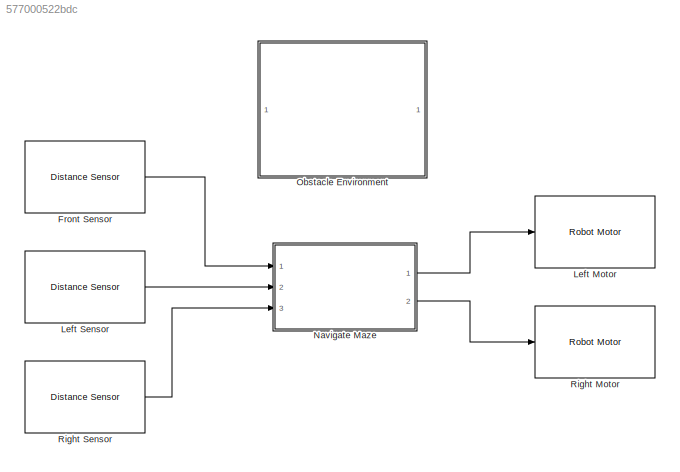
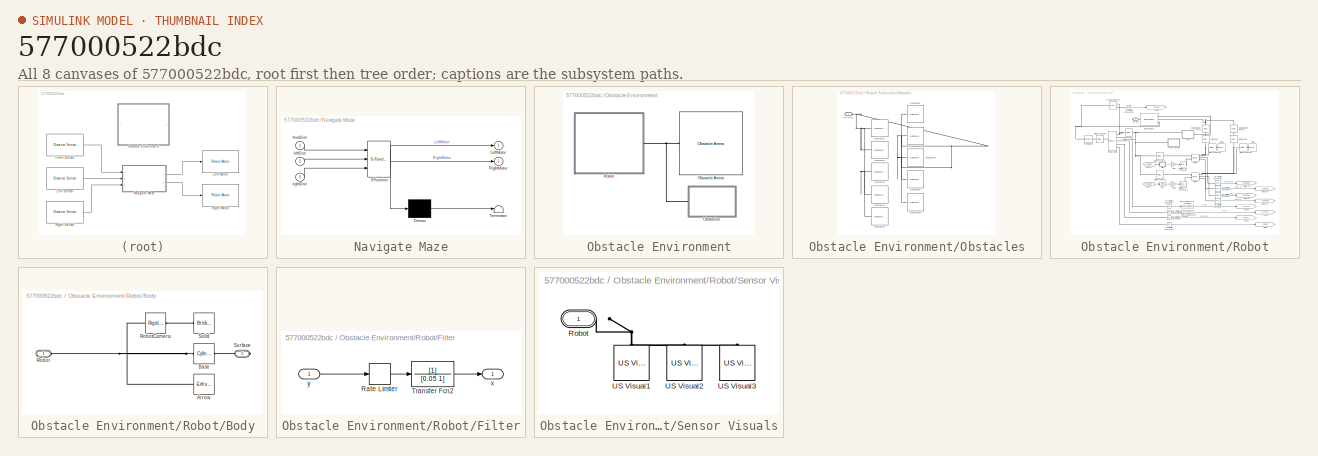
[diagram: thumbnail index - all 8 canvases of the model, root first then tree order]
MODEL slx_577000522bdc
KIND model
CONFIG AbsTol = auto
CONFIG EnableMultiTasking = off
CONFIG FixedStep = auto
CONFIG InitFcn = RPInit
CONFIG MaxStep = auto
CONFIG MinStep = auto
CONFIG RelTol = 1e-3
CONFIG SampleTimeConstraint = Unconstrained
CONFIG Solver = ode23t
CONFIG SolverName = ode23t
CONFIG StartTime = 0.0
CONFIG StopTime = inf
WORKSPACE source: mxarray member
WORKSPACE mapForSim: object (value not decoded)
WORKSPACE occGrid: robotics.BinaryOccupancyGrid (value not decoded)
BLOCK [Reference] Front Sensor  REF=RoboticsPlayground/Basic Sensors and Actuators/Distance Sensor
  Ports = [0, 1]
  SourceBlock = RoboticsPlayground/Basic Sensors and Actuators/Distance Sensor
  SourceProductName = Robotics Playground
  SourceType = RP Distance Sensor
BLOCK [Reference] Left Motor  REF=RoboticsPlayground/Basic Sensors and Actuators/Robot Motor
  Ports = [1]
  SourceBlock = RoboticsPlayground/Basic Sensors and Actuators/Robot Motor
  SourceProductName = Robotics Playground
  SourceType = RP Robot Motor
BLOCK [Reference] Left Sensor  REF=RoboticsPlayground/Basic Sensors and Actuators/Distance Sensor
  Ports = [0, 1]
  SourceBlock = RoboticsPlayground/Basic Sensors and Actuators/Distance Sensor
  SourceProductName = Robotics Playground
  SourceType = RP Distance Sensor
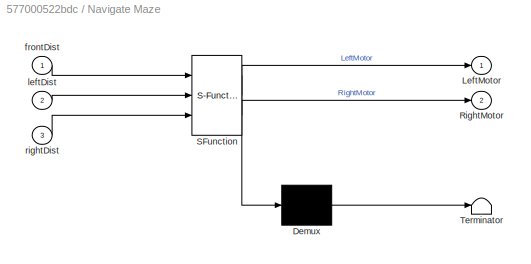
BLOCK [SubSystem] Navigate Maze
  ErrorFcn = Stateflow.Translate.translate
  PermitHierarchicalResolution = ExplicitOnly
  Ports = [3, 2]
  RequestExecContextInheritance = off
  SFBlockType = Chart
  TreatAsAtomicUnit = on
BLOCK [Demux] Navigate Maze/ Demux 
  Outputs = 1
  Ports = [1, 1]
BLOCK [S-Function] Navigate Maze/ SFunction 
  EnableBusSupport = on
  FunctionName = sf_sfun
  PortCounts = [3 3]
  Ports = [3, 3]
  SFcnIsStateOwnerBlock = off
  SFunctionDeploymentMode = off
  Tag = Stateflow S-Function 3
BLOCK [Terminator] Navigate Maze/ Terminator 
BLOCK [Outport] Navigate Maze/LeftMotor
  IconDisplay = Port number
  VectorParamsAs1DForOutWhenUnconnected = off
BLOCK [Outport] Navigate Maze/RightMotor
  IconDisplay = Port number
  Port = 2
  VectorParamsAs1DForOutWhenUnconnected = off
BLOCK [Inport] Navigate Maze/frontDist
  IconDisplay = Port number
BLOCK [Inport] Navigate Maze/leftDist
  IconDisplay = Port number
  Port = 2
BLOCK [Inport] Navigate Maze/rightDist
  IconDisplay = Port number
  Port = 3
BLOCK [SubSystem] Obstacle Environment
  CopyFcn = set_param(gcs,'InitFcn','RPInit');\nset_param(gcs,'Solver','ode23t');\nset_param(gcs, 'EnablePacing', 'on')\nset_param(gcs, 'PacingRate', 1)
  Ports = []
  RequestExecContextInheritance = off
BLOCK [Reference] Obstacle Environment/Obstacle Arena  REF=RP_Simulator_Components/Obstacle Arena
  Ports = [0, 0, 0, 0, 0, 1]
  SourceBlock = RP_Simulator_Components/Obstacle Arena
  SourceType = RP Grid Arena
BLOCK [SubSystem] Obstacle Environment/Obstacles
  Ports = [0, 0, 0, 0, 0, 1]
  RequestExecContextInheritance = off
BLOCK [Reference] Obstacle Environment/Obstacles/Obstacle1  REF=RP_Simulator_Components/Obstacle Contact-Disc Robot
  Ports = [0, 0, 0, 0, 0, 1]
  SourceBlock = RP_Simulator_Components/Obstacle Contact-Disc Robot
  SourceType = RP Rectangle-Disc obstacle
BLOCK [Reference] Obstacle Environment/Obstacles/Obstacle10  REF=RP_Simulator_Components/Obstacle Contact-Disc Robot
  Commented = on
  Ports = [0, 0, 0, 0, 0, 1]
  SourceBlock = RP_Simulator_Components/Obstacle Contact-Disc Robot
  SourceType = RP Rectangle-Disc obstacle
BLOCK [Reference] Obstacle Environment/Obstacles/Obstacle2  REF=RP_Simulator_Components/Obstacle Contact-Disc Robot
  Ports = [0, 0, 0, 0, 0, 1]
  SourceBlock = RP_Simulator_Components/Obstacle Contact-Disc Robot
  SourceType = RP Rectangle-Disc obstacle
BLOCK [Reference] Obstacle Environment/Obstacles/Obstacle3  REF=RP_Simulator_Components/Obstacle Contact-Disc Robot
  Ports = [0, 0, 0, 0, 0, 1]
  SourceBlock = RP_Simulator_Components/Obstacle Contact-Disc Robot
  SourceType = RP Rectangle-Disc obstacle
BLOCK [Reference] Obstacle Environment/Obstacles/Obstacle4  REF=RP_Simulator_Components/Obstacle Contact-Disc Robot
  Ports = [0, 0, 0, 0, 0, 1]
  SourceBlock = RP_Simulator_Components/Obstacle Contact-Disc Robot
  SourceType = RP Rectangle-Disc obstacle
BLOCK [Reference] Obstacle Environment/Obstacles/Obstacle5  REF=RP_Simulator_Components/Obstacle Contact-Disc Robot
  Ports = [0, 0, 0, 0, 0, 1]
  SourceBlock = RP_Simulator_Components/Obstacle Contact-Disc Robot
  SourceType = RP Rectangle-Disc obstacle
BLOCK [Reference] Obstacle Environment/Obstacles/Obstacle6  REF=RP_Simulator_Components/Obstacle Contact-Disc Robot
  Ports = [0, 0, 0, 0, 0, 1]
  SourceBlock = RP_Simulator_Components/Obstacle Contact-Disc Robot
  SourceType = RP Rectangle-Disc obstacle
BLOCK [Reference] Obstacle Environment/Obstacles/Obstacle7  REF=RP_Simulator_Components/Obstacle Contact-Disc Robot
  Ports = [0, 0, 0, 0, 0, 1]
  SourceBlock = RP_Simulator_Components/Obstacle Contact-Disc Robot
  SourceType = RP Rectangle-Disc obstacle
BLOCK [Reference] Obstacle Environment/Obstacles/Obstacle8  REF=RP_Simulator_Components/Obstacle Contact-Disc Robot
  Commented = on
  Ports = [0, 0, 0, 0, 0, 1]
  SourceBlock = RP_Simulator_Components/Obstacle Contact-Disc Robot
  SourceType = RP Rectangle-Disc obstacle
BLOCK [Reference] Obstacle Environment/Obstacles/Obstacle9  REF=RP_Simulator_Components/Obstacle Contact-Disc Robot
  Commented = on
  Ports = [0, 0, 0, 0, 0, 1]
  SourceBlock = RP_Simulator_Components/Obstacle Contact-Disc Robot
  SourceType = RP Rectangle-Disc obstacle
BLOCK [PMIOPort] Obstacle Environment/Obstacles/RP-Bus
  Side = Left
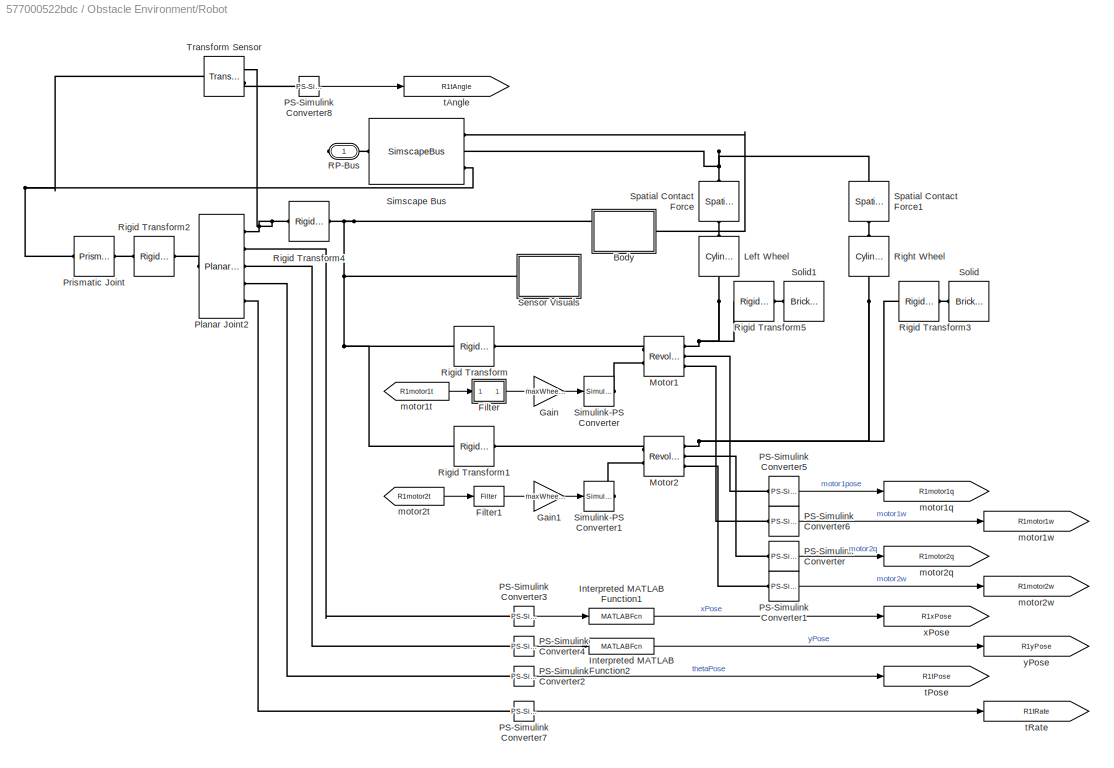
BLOCK [SubSystem] Obstacle Environment/Robot
  AncestorBlock = RP_Simulator_Components/Contact Tank Robot
  Ports = [0, 0, 0, 0, 0, 0, 1]
  RequestExecContextInheritance = off
BLOCK [SubSystem] Obstacle Environment/Robot/Body
  Ports = [0, 0, 0, 0, 0, 1, 1]
  RequestExecContextInheritance = off
BLOCK [Reference] Obstacle Environment/Robot/Body/Arrow  REF=sm_lib/Body Elements/Extruded Solid
  Ports = [0, 0, 0, 0, 0, 0, 1]
  SourceBlock = sm_lib/Body Elements/Extruded Solid
  SourceProductBaseCode = MS
  SourceProductName = Simscape Multibody
  SourceType = Extruded Solid
BLOCK [Reference] Obstacle Environment/Robot/Body/Base  REF=sm_lib/Body Elements/Cylindrical Solid
  Ports = [0, 0, 0, 0, 0, 1, 1]
  SourceBlock = sm_lib/Body Elements/Cylindrical Solid
  SourceProductBaseCode = MS
  SourceProductName = Simscape Multibody
  SourceType = Cylindrical Solid
BLOCK [PMIOPort] Obstacle Environment/Robot/Body/Robot
  Side = Left
BLOCK [Reference] Obstacle Environment/Robot/Body/RobotCamera  REF=sm_lib/Frames and
Transforms/Rigid
Transform
  Ports = [0, 0, 0, 0, 0, 1, 1]
  SourceBlock = sm_lib/Frames and\nTransforms/Rigid\nTransform
  SourceProductBaseCode = MS
  SourceProductName = Simscape Multibody
  SourceType = Rigid\nTransform
BLOCK [Reference] Obstacle Environment/Robot/Body/Solid  REF=sm_lib/Body Elements/Brick Solid
  Ports = [0, 0, 0, 0, 0, 0, 1]
  SourceBlock = sm_lib/Body Elements/Brick Solid
  SourceProductBaseCode = MS
  SourceProductName = Simscape Multibody
  SourceType = Brick Solid
BLOCK [PMIOPort] Obstacle Environment/Robot/Body/Surface
  Port = 2
  Side = Right
BLOCK [SubSystem] Obstacle Environment/Robot/Filter
  Ports = [1, 1]
  RequestExecContextInheritance = off
BLOCK [RateLimiter] Obstacle Environment/Robot/Filter/Rate Limiter
  FallingSlewLimit = -300
  RisingSlewLimit = 300
  SampleTimeMode = inherited
BLOCK [TransferFcn] Obstacle Environment/Robot/Filter/Transfer Fcn2
  Denominator = [0.05 1]
BLOCK [Outport] Obstacle Environment/Robot/Filter/x
  IconDisplay = Port number
  VectorParamsAs1DForOutWhenUnconnected = off
BLOCK [Inport] Obstacle Environment/Robot/Filter/y
  IconDisplay = Port number
BLOCK [Reference] Obstacle Environment/Robot/Filter1  REF=RP_Simulator_Components/Contact Tank Robot/Filter
  Ports = [1, 1]
  SourceBlock = RP_Simulator_Components/Contact Tank Robot/Filter
  SourceType = SubSystem
BLOCK [Gain] Obstacle Environment/Robot/Gain
  Gain = maxWheelTorque/127
  OutDataTypeStr = Inherit: Inherit via internal rule
  ParamDataTypeStr = Inherit: Inherit via internal rule
  SaturateOnIntegerOverflow = off
BLOCK [Gain] Obstacle Environment/Robot/Gain1
  Gain = maxWheelTorque/127
  OutDataTypeStr = Inherit: Inherit via internal rule
  ParamDataTypeStr = Inherit: Inherit via internal rule
  SaturateOnIntegerOverflow = off
BLOCK [MATLABFcn] Obstacle Environment/Robot/Interpreted MATLAB Function1
  MATLABFcn = u+floorSize(1)/2
  Ports = [1, 1]
BLOCK [MATLABFcn] Obstacle Environment/Robot/Interpreted MATLAB Function2
  MATLABFcn = u+floorSize(2)/2
  Ports = [1, 1]
BLOCK [Reference] Obstacle Environment/Robot/Left Wheel  REF=sm_lib/Body Elements/Cylindrical Solid
  Ports = [0, 0, 0, 0, 0, 1, 1]
  SourceBlock = sm_lib/Body Elements/Cylindrical Solid
  SourceProductBaseCode = MS
  SourceProductName = Simscape Multibody
  SourceType = Cylindrical Solid
BLOCK [Reference] Obstacle Environment/Robot/Motor1  REF=sm_lib/Joints/Revolute Joint
  Ports = [0, 0, 0, 0, 0, 2, 3]
  SourceBlock = sm_lib/Joints/Revolute Joint
  SourceProductBaseCode = MS
  SourceProductName = Simscape Multibody
  SourceType = Revolute Joint
BLOCK [Reference] Obstacle Environment/Robot/Motor2  REF=sm_lib/Joints/Revolute Joint
  Ports = [0, 0, 0, 0, 0, 2, 3]
  SourceBlock = sm_lib/Joints/Revolute Joint
  SourceProductBaseCode = MS
  SourceProductName = Simscape Multibody
  SourceType = Revolute Joint
BLOCK [Reference] Obstacle Environment/Robot/PS-Simulink Converter  REF=nesl_utility/PS-Simulink
Converter
  Ports = [0, 1, 0, 0, 0, 1]
  SourceBlock = nesl_utility/PS-Simulink\nConverter
  SourceProductBaseCode = SS
  SourceProductName = Simscape
  SourceType = PS-Simulink\nConverter
BLOCK [Reference] Obstacle Environment/Robot/PS-Simulink Converter1  REF=nesl_utility/PS-Simulink
Converter
  Ports = [0, 1, 0, 0, 0, 1]
  SourceBlock = nesl_utility/PS-Simulink\nConverter
  SourceProductBaseCode = SS
  SourceProductName = Simscape
  SourceType = PS-Simulink\nConverter
BLOCK [Reference] Obstacle Environment/Robot/PS-Simulink Converter2  REF=nesl_utility/PS-Simulink
Converter
  Ports = [0, 1, 0, 0, 0, 1]
  SourceBlock = nesl_utility/PS-Simulink\nConverter
  SourceProductBaseCode = SS
  SourceProductName = Simscape
  SourceType = PS-Simulink\nConverter
BLOCK [Reference] Obstacle Environment/Robot/PS-Simulink Converter3  REF=nesl_utility/PS-Simulink
Converter
  Ports = [0, 1, 0, 0, 0, 1]
  SourceBlock = nesl_utility/PS-Simulink\nConverter
  SourceProductBaseCode = SS
  SourceProductName = Simscape
  SourceType = PS-Simulink\nConverter
BLOCK [Reference] Obstacle Environment/Robot/PS-Simulink Converter4  REF=nesl_utility/PS-Simulink
Converter
  Ports = [0, 1, 0, 0, 0, 1]
  SourceBlock = nesl_utility/PS-Simulink\nConverter
  SourceProductBaseCode = SS
  SourceProductName = Simscape
  SourceType = PS-Simulink\nConverter
BLOCK [Reference] Obstacle Environment/Robot/PS-Simulink Converter5  REF=nesl_utility/PS-Simulink
Converter
  Ports = [0, 1, 0, 0, 0, 1]
  SourceBlock = nesl_utility/PS-Simulink\nConverter
  SourceProductBaseCode = SS
  SourceProductName = Simscape
  SourceType = PS-Simulink\nConverter
BLOCK [Reference] Obstacle Environment/Robot/PS-Simulink Converter6  REF=nesl_utility/PS-Simulink
Converter
  Ports = [0, 1, 0, 0, 0, 1]
  SourceBlock = nesl_utility/PS-Simulink\nConverter
  SourceProductBaseCode = SS
  SourceProductName = Simscape
  SourceType = PS-Simulink\nConverter
BLOCK [Reference] Obstacle Environment/Robot/PS-Simulink Converter7  REF=nesl_utility/PS-Simulink
Converter
  Ports = [0, 1, 0, 0, 0, 1]
  SourceBlock = nesl_utility/PS-Simulink\nConverter
  SourceProductBaseCode = SS
  SourceProductName = Simscape
  SourceType = PS-Simulink\nConverter
BLOCK [Reference] Obstacle Environment/Robot/PS-Simulink Converter8  REF=nesl_utility/PS-Simulink
Converter
  Ports = [0, 1, 0, 0, 0, 1]
  SourceBlock = nesl_utility/PS-Simulink\nConverter
  SourceProductBaseCode = SS
  SourceProductName = Simscape
  SourceType = PS-Simulink\nConverter
BLOCK [Reference] Obstacle Environment/Robot/Planar Joint2  REF=sm_lib/Joints/Planar Joint
  Ports = [0, 0, 0, 0, 0, 1, 5]
  SourceBlock = sm_lib/Joints/Planar Joint
  SourceProductBaseCode = MS
  SourceProductName = Simscape Multibody
  SourceType = Planar Joint
BLOCK [Reference] Obstacle Environment/Robot/Prismatic Joint  REF=sm_lib/Joints/Prismatic
Joint
  Ports = [0, 0, 0, 0, 0, 1, 1]
  SourceBlock = sm_lib/Joints/Prismatic\nJoint
  SourceProductBaseCode = MS
  SourceProductName = Simscape Multibody
  SourceType = Prismatic\nJoint
BLOCK [PMIOPort] Obstacle Environment/Robot/RP-Bus
  Side = Right
BLOCK [Reference] Obstacle Environment/Robot/Right Wheel  REF=sm_lib/Body Elements/Cylindrical Solid
  Ports = [0, 0, 0, 0, 0, 1, 1]
  SourceBlock = sm_lib/Body Elements/Cylindrical Solid
  SourceProductBaseCode = MS
  SourceProductName = Simscape Multibody
  SourceType = Cylindrical Solid
BLOCK [Reference] Obstacle Environment/Robot/Rigid Transform  REF=sm_lib/Frames and
Transforms/Rigid
Transform
  Ports = [0, 0, 0, 0, 0, 1, 1]
  SourceBlock = sm_lib/Frames and\nTransforms/Rigid\nTransform
  SourceProductBaseCode = MS
  SourceProductName = Simscape Multibody
  SourceType = Rigid\nTransform
BLOCK [Reference] Obstacle Environment/Robot/Rigid Transform1  REF=sm_lib/Frames and
Transforms/Rigid
Transform
  Ports = [0, 0, 0, 0, 0, 1, 1]
  SourceBlock = sm_lib/Frames and\nTransforms/Rigid\nTransform
  SourceProductBaseCode = MS
  SourceProductName = Simscape Multibody
  SourceType = Rigid\nTransform
BLOCK [Reference] Obstacle Environment/Robot/Rigid Transform2  REF=sm_lib/Frames and
Transforms/Rigid
Transform
  Ports = [0, 0, 0, 0, 0, 1, 1]
  SourceBlock = sm_lib/Frames and\nTransforms/Rigid\nTransform
  SourceProductBaseCode = MS
  SourceProductName = Simscape Multibody
  SourceType = Rigid\nTransform
BLOCK [Reference] Obstacle Environment/Robot/Rigid Transform3  REF=sm_lib/Frames and
Transforms/Rigid
Transform
  Ports = [0, 0, 0, 0, 0, 1, 1]
  SourceBlock = sm_lib/Frames and\nTransforms/Rigid\nTransform
  SourceProductBaseCode = MS
  SourceProductName = Simscape Multibody
  SourceType = Rigid\nTransform
BLOCK [Reference] Obstacle Environment/Robot/Rigid Transform4  REF=sm_lib/Frames and
Transforms/Rigid
Transform
  Ports = [0, 0, 0, 0, 0, 1, 1]
  SourceBlock = sm_lib/Frames and\nTransforms/Rigid\nTransform
  SourceProductBaseCode = MS
  SourceProductName = Simscape Multibody
  SourceType = Rigid\nTransform
BLOCK [Reference] Obstacle Environment/Robot/Rigid Transform5  REF=sm_lib/Frames and
Transforms/Rigid
Transform
  Ports = [0, 0, 0, 0, 0, 1, 1]
  SourceBlock = sm_lib/Frames and\nTransforms/Rigid\nTransform
  SourceProductBaseCode = MS
  SourceProductName = Simscape Multibody
  SourceType = Rigid\nTransform
BLOCK [SubSystem] Obstacle Environment/Robot/Sensor Visuals
  Ports = [0, 0, 0, 0, 0, 1]
  RequestExecContextInheritance = off
BLOCK [PMIOPort] Obstacle Environment/Robot/Sensor Visuals/Robot
  Side = Left
BLOCK [Reference] Obstacle Environment/Robot/Sensor Visuals/US Visual1  REF=RP_Simulator_Components/US Visual
  Ports = [0, 0, 0, 0, 0, 1]
  SourceBlock = RP_Simulator_Components/US Visual
  SourceType = RP US Visual
BLOCK [Reference] Obstacle Environment/Robot/Sensor Visuals/US Visual2  REF=RP_Simulator_Components/US Visual
  Ports = [0, 0, 0, 0, 0, 1]
  SourceBlock = RP_Simulator_Components/US Visual
  SourceType = RP US Visual
BLOCK [Reference] Obstacle Environment/Robot/Sensor Visuals/US Visual3  REF=RP_Simulator_Components/US Visual
  Ports = [0, 0, 0, 0, 0, 1]
  SourceBlock = RP_Simulator_Components/US Visual
  SourceType = RP US Visual
BLOCK [SimscapeBus] Obstacle Environment/Robot/Simscape Bus
  HierarchyStrings = RobotSurface;FloorSurface;Ref
  Ports = [0, 0, 0, 0, 0, 3, 1]
BLOCK [Reference] Obstacle Environment/Robot/Simulink-PS Converter  REF=nesl_utility/Simulink-PS
Converter
  Ports = [1, 0, 0, 0, 0, 0, 1]
  SourceBlock = nesl_utility/Simulink-PS\nConverter
  SourceProductBaseCode = SS
  SourceProductName = Simscape
  SourceType = Simulink-PS\nConverter
BLOCK [Reference] Obstacle Environment/Robot/Simulink-PS Converter1  REF=nesl_utility/Simulink-PS
Converter
  Ports = [1, 0, 0, 0, 0, 0, 1]
  SourceBlock = nesl_utility/Simulink-PS\nConverter
  SourceProductBaseCode = SS
  SourceProductName = Simscape
  SourceType = Simulink-PS\nConverter
BLOCK [Reference] Obstacle Environment/Robot/Solid  REF=sm_lib/Body Elements/Brick Solid
  Ports = [0, 0, 0, 0, 0, 0, 1]
  SourceBlock = sm_lib/Body Elements/Brick Solid
  SourceProductBaseCode = MS
  SourceProductName = Simscape Multibody
  SourceType = Brick Solid
BLOCK [Reference] Obstacle Environment/Robot/Solid1  REF=sm_lib/Body Elements/Brick Solid
  Ports = [0, 0, 0, 0, 0, 0, 1]
  SourceBlock = sm_lib/Body Elements/Brick Solid
  SourceProductBaseCode = MS
  SourceProductName = Simscape Multibody
  SourceType = Brick Solid
BLOCK [Reference] Obstacle Environment/Robot/Spatial Contact Force  REF=sm_lib/Forces and
Torques/Spatial
Contact Force
  Ports = [0, 0, 0, 0, 0, 1, 1]
  SourceBlock = sm_lib/Forces and\nTorques/Spatial\nContact Force
  SourceProductBaseCode = MS
  SourceProductName = Simscape Multibody
  SourceType = Spatial\nContact Force
BLOCK [Reference] Obstacle Environment/Robot/Spatial Contact Force1  REF=sm_lib/Forces and
Torques/Spatial
Contact Force
  Ports = [0, 0, 0, 0, 0, 1, 1]
  SourceBlock = sm_lib/Forces and\nTorques/Spatial\nContact Force
  SourceProductBaseCode = MS
  SourceProductName = Simscape Multibody
  SourceType = Spatial\nContact Force
BLOCK [Reference] Obstacle Environment/Robot/Transform Sensor  REF=sm_lib/Frames and
Transforms/Transform
Sensor
  Ports = [0, 0, 0, 0, 0, 1, 2]
  SourceBlock = sm_lib/Frames and\nTransforms/Transform\nSensor
  SourceProductBaseCode = MS
  SourceProductName = Simscape Multibody
  SourceType = Transform\nSensor
BLOCK [Goto] Obstacle Environment/Robot/motor1q
  GotoTag = R1motor1q
  TagVisibility = global
BLOCK [From] Obstacle Environment/Robot/motor1t
  GotoTag = R1motor1t
  TagVisibility = global
BLOCK [Goto] Obstacle Environment/Robot/motor1w
  GotoTag = R1motor1w
  TagVisibility = global
BLOCK [Goto] Obstacle Environment/Robot/motor2q
  GotoTag = R1motor2q
  TagVisibility = global
BLOCK [From] Obstacle Environment/Robot/motor2t
  GotoTag = R1motor2t
  TagVisibility = global
BLOCK [Goto] Obstacle Environment/Robot/motor2w
  GotoTag = R1motor2w
  TagVisibility = global
BLOCK [Goto] Obstacle Environment/Robot/tAngle
  GotoTag = R1tAngle
  TagVisibility = global
BLOCK [Goto] Obstacle Environment/Robot/tPose
  GotoTag = R1tPose
  TagVisibility = global
BLOCK [Goto] Obstacle Environment/Robot/tRate
  GotoTag = R1tRate
  TagVisibility = global
BLOCK [Goto] Obstacle Environment/Robot/xPose
  GotoTag = R1xPose
  TagVisibility = global
BLOCK [Goto] Obstacle Environment/Robot/yPose
  GotoTag = R1yPose
  TagVisibility = global
BLOCK [Reference] Right Motor  REF=RoboticsPlayground/Basic Sensors and Actuators/Robot Motor
  Ports = [1]
  SourceBlock = RoboticsPlayground/Basic Sensors and Actuators/Robot Motor
  SourceProductName = Robotics Playground
  SourceType = RP Robot Motor
BLOCK [Reference] Right Sensor  REF=RoboticsPlayground/Basic Sensors and Actuators/Distance Sensor
  Ports = [0, 1]
  SourceBlock = RoboticsPlayground/Basic Sensors and Actuators/Distance Sensor
  SourceProductName = Robotics Playground
  SourceType = RP Distance Sensor
LINE Front Sensor:1 -> Navigate Maze:1
LINE Left Sensor:1 -> Navigate Maze:2
LINE Navigate Maze:1 -> Left Motor:1
LINE Navigate Maze:2 -> Right Motor:1
LINE Right Sensor:1 -> Navigate Maze:3
CHART Navigate Maze states=3 transitions=5
  STATE_LABEL 'TurnLeft\nLeftMotor=-100;\nRightMotor=100;'
  STATE_LABEL 'TurnRight\nLeftMotor=100;\nRightMotor=-100;'
  STATE_LABEL 'MoveForward\nLeftMotor=100;\nRightMotor=100;'
